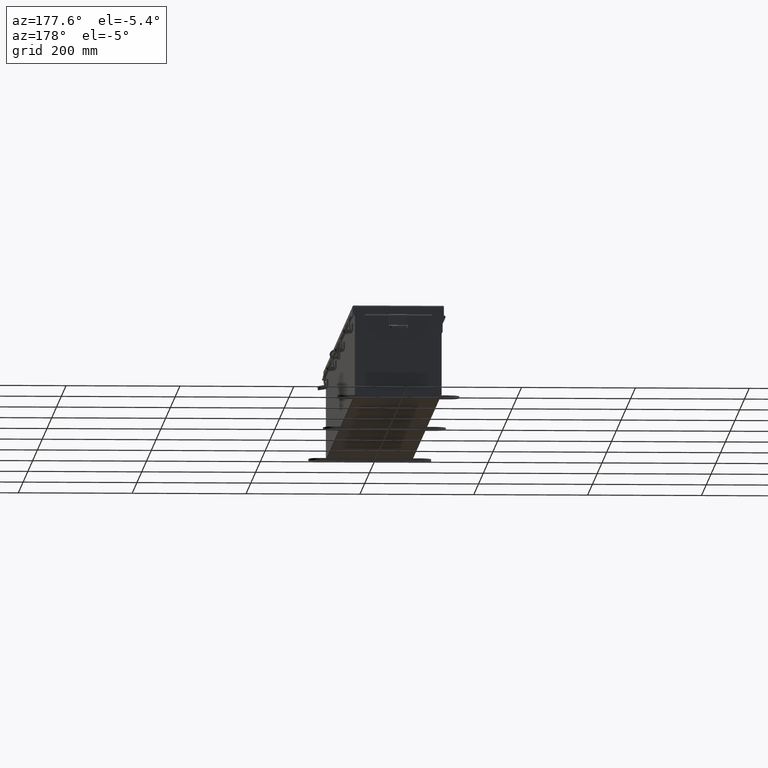
[diagram: clean part render]
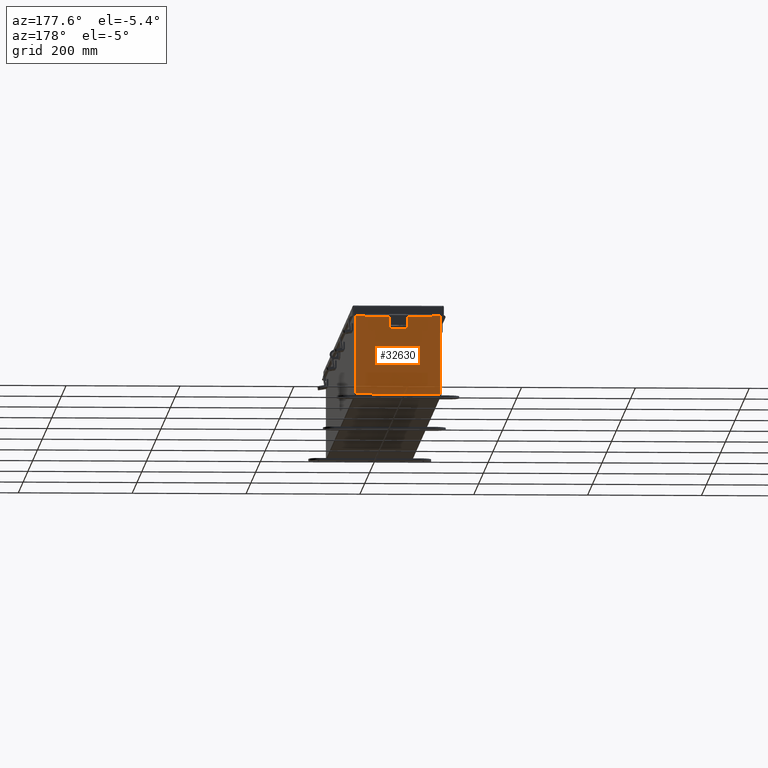
[diagram: same view with one face highlighted and labeled with its STEP entity id]
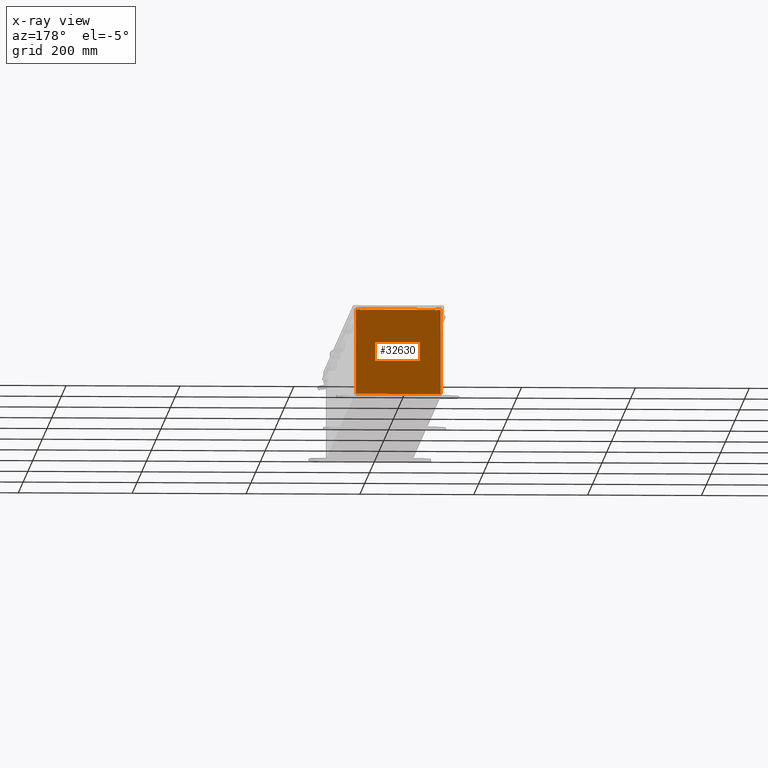
[diagram: x-ray of the same camera — body ghosted, the highlighted face saturated]
A machine part, auxiliary view. The second image highlights one B-rep face of the part: STEP entity #32630.
The next image is the same camera in x-ray: the body ghosted, the highlighted face saturated — about 0% of this face is hidden behind the body in this view.
In plain terms, the highlighted planar face has unit normal (0, -1, 0).
Its self-contained STEP definition (entity closure, byte-faithful):
#971 = VECTOR ( 'NONE', #12448, 39.37007874015748100 ) ;
#1104 = CARTESIAN_POINT ( 'NONE',  ( 0.0000000000000000000, 0.0000000000000000000, 0.0000000000000000000 ) ) ;
#1182 = VECTOR ( 'NONE', #19466, 39.37007874015748100 ) ;
#1683 = DIRECTION ( 'NONE',  ( -0.0000000000000000000, 1.000000000000000000, -0.0000000000000000000 ) ) ;
#1830 = VERTEX_POINT ( 'NONE', #13663 ) ;
#2603 = LINE ( 'NONE', #4765, #36898 ) ;
#3107 = CARTESIAN_POINT ( 'NONE',  ( -2.925299999999999600, 0.0000000000000000000, 2.925299999999999600 ) ) ;
#3224 = DIRECTION ( 'NONE',  ( 1.000000000000000000, 0.0000000000000000000, 0.0000000000000000000 ) ) ;
#3374 = ORIENTED_EDGE ( 'NONE', *, *, #30429, .T. ) ;
#3626 = LINE ( 'NONE', #29547, #17840 ) ;
#3937 = CARTESIAN_POINT ( 'NONE',  ( -2.582299999999999600, 0.0000000000000000000, 0.0000000000000000000 ) ) ;
#4387 = EDGE_LOOP ( 'NONE', ( #8232, #14737, #27650, #9432, #6762, #17682, #13247, #23038, #5798, #3374, #29632, #5017 ) ) ;
#4627 = VECTOR ( 'NONE', #15702, 39.37007874015748100 ) ;
#4676 = VERTEX_POINT ( 'NONE', #24451 ) ;
#4765 = CARTESIAN_POINT ( 'NONE',  ( -2.925299999999999600, 0.0000000000000000000, -2.925300000000000000 ) ) ;
#5017 = ORIENTED_EDGE ( 'NONE', *, *, #21602, .T. ) ;
#5153 = AXIS2_PLACEMENT_3D ( 'NONE', #9531, #29431, #12373 ) ;
#5535 = DIRECTION ( 'NONE',  ( 0.0000000000000000000, 0.0000000000000000000, 1.000000000000000000 ) ) ;
#5798 = ORIENTED_EDGE ( 'NONE', *, *, #28583, .T. ) ;
#6762 = ORIENTED_EDGE ( 'NONE', *, *, #16115, .F. ) ;
#6780 = DIRECTION ( 'NONE',  ( -0.0000000000000000000, -0.0000000000000000000, 1.000000000000000000 ) ) ;
#8232 = ORIENTED_EDGE ( 'NONE', *, *, #25543, .F. ) ;
#8736 = LINE ( 'NONE', #13587, #1182 ) ;
#9432 = ORIENTED_EDGE ( 'NONE', *, *, #14220, .T. ) ;
#9531 = CARTESIAN_POINT ( 'NONE',  ( -2.600974999999999600, 0.0000000000000000000, 2.874949999999998300 ) ) ;
#9666 = CARTESIAN_POINT ( 'NONE',  ( -2.619649999999999600, 0.0000000000000000000, 2.874949999999998300 ) ) ;
#9896 = VERTEX_POINT ( 'NONE', #29251 ) ;
#9927 = CIRCLE ( 'NONE', #29916, 0.01867500000000003900 ) ;
#10047 = CARTESIAN_POINT ( 'NONE',  ( 2.925300000000000500, 0.0000000000000000000, 2.925299999999999600 ) ) ;
#10503 = EDGE_CURVE ( 'NONE', #19156, #20650, #25506, .T. ) ;
#10515 = VERTEX_POINT ( 'NONE', #20748 ) ;
#10892 = VECTOR ( 'NONE', #5535, 39.37007874015748100 ) ;
#11138 = LINE ( 'NONE', #18131, #32972 ) ;
#11798 = VERTEX_POINT ( 'NONE', #26479 ) ;
#12291 = EDGE_CURVE ( 'NONE', #30597, #11798, #23665, .T. ) ;
#12363 = AXIS2_PLACEMENT_3D ( 'NONE', #1104, #35340, #18274 ) ;
#12373 = DIRECTION ( 'NONE',  ( 0.0000000000000000000, 0.0000000000000000000, -1.000000000000000000 ) ) ;
#12448 = DIRECTION ( 'NONE',  ( 0.0000000000000000000, 0.0000000000000000000, -1.000000000000000000 ) ) ;
#13022 = LINE ( 'NONE', #32910, #4627 ) ;
#13247 = ORIENTED_EDGE ( 'NONE', *, *, #10503, .F. ) ;
#13522 = CARTESIAN_POINT ( 'NONE',  ( 2.925300000000000500, 0.0000000000000000000, -2.925300000000000000 ) ) ;
#13587 = CARTESIAN_POINT ( 'NONE',  ( -2.582299999999999600, 0.0000000000000000000, 2.912299999999999200 ) ) ;
#13663 = CARTESIAN_POINT ( 'NONE',  ( 2.582300000000000500, 0.0000000000000000000, 2.874949999999998300 ) ) ;
#13938 = VERTEX_POINT ( 'NONE', #9666 ) ;
#14220 = EDGE_CURVE ( 'NONE', #30597, #20179, #8736, .T. ) ;
#14360 = VECTOR ( 'NONE', #19457, 39.37007874015748100 ) ;
#14737 = ORIENTED_EDGE ( 'NONE', *, *, #19885, .F. ) ;
#14864 = DIRECTION ( 'NONE',  ( -1.085143195099989400E-014, 0.0000000000000000000, -1.000000000000000000 ) ) ;
#15327 = VERTEX_POINT ( 'NONE', #10047 ) ;
#15424 = CARTESIAN_POINT ( 'NONE',  ( 2.619650000000000500, 0.0000000000000000000, 2.874949999999998300 ) ) ;
#15702 = DIRECTION ( 'NONE',  ( 1.000000000000000000, 0.0000000000000000000, 0.0000000000000000000 ) ) ;
#15945 = EDGE_CURVE ( 'NONE', #19156, #15327, #13022, .T. ) ;
#16115 = EDGE_CURVE ( 'NONE', #1830, #20179, #30400, .T. ) ;
#16145 = DIRECTION ( 'NONE',  ( -1.000000000000000000, -0.0000000000000000000, -0.0000000000000000000 ) ) ;
#16584 = CARTESIAN_POINT ( 'NONE',  ( 2.582300000000000500, 0.0000000000000000000, 0.0000000000000000000 ) ) ;
#17682 = ORIENTED_EDGE ( 'NONE', *, *, #20021, .F. ) ;
#17840 = VECTOR ( 'NONE', #32426, 39.37007874015748100 ) ;
#17946 = VECTOR ( 'NONE', #14864, 39.37007874015748100 ) ;
#18131 = CARTESIAN_POINT ( 'NONE',  ( -2.925299999999999600, 0.0000000000000000000, 2.925299999999999600 ) ) ;
#18274 = DIRECTION ( 'NONE',  ( 0.0000000000000000000, -0.0000000000000000000, -1.000000000000000000 ) ) ;
#18714 = CARTESIAN_POINT ( 'NONE',  ( 2.600975000000000500, 0.0000000000000000000, 2.874949999999998300 ) ) ;
#19156 = VERTEX_POINT ( 'NONE', #20280 ) ;
#19320 = CARTESIAN_POINT ( 'NONE',  ( 2.582300000000000500, 0.0000000000000000000, 2.912299999999999200 ) ) ;
#19457 = DIRECTION ( 'NONE',  ( 0.0000000000000000000, 0.0000000000000000000, 1.000000000000000000 ) ) ;
#19466 = DIRECTION ( 'NONE',  ( 1.000000000000000000, 0.0000000000000000000, 0.0000000000000000000 ) ) ;
#19657 = CARTESIAN_POINT ( 'NONE',  ( -2.582299999999999600, 0.0000000000000000000, 2.912299999999999200 ) ) ;
#19885 = EDGE_CURVE ( 'NONE', #11798, #13938, #28652, .T. ) ;
#20021 = EDGE_CURVE ( 'NONE', #20650, #1830, #9927, .T. ) ;
#20179 = VERTEX_POINT ( 'NONE', #19320 ) ;
#20280 = CARTESIAN_POINT ( 'NONE',  ( 2.619650000000000500, 0.0000000000000000000, 2.925299999999999600 ) ) ;
#20427 = FACE_OUTER_BOUND ( 'NONE', #4387, .T. ) ;
#20650 = VERTEX_POINT ( 'NONE', #15424 ) ;
#20748 = CARTESIAN_POINT ( 'NONE',  ( -2.619649999999999600, 0.0000000000000000000, 2.925299999999999600 ) ) ;
#21581 = DIRECTION ( 'NONE',  ( 0.0000000000000000000, 0.0000000000000000000, -1.000000000000000000 ) ) ;
#21602 = EDGE_CURVE ( 'NONE', #4676, #10515, #33485, .T. ) ;
#22562 = CARTESIAN_POINT ( 'NONE',  ( -2.619649999999999600, 0.0000000000000000000, 0.0000000000000000000 ) ) ;
#23038 = ORIENTED_EDGE ( 'NONE', *, *, #15945, .T. ) ;
#23665 = LINE ( 'NONE', #3937, #971 ) ;
#24451 = CARTESIAN_POINT ( 'NONE',  ( -2.925299999999999600, 0.0000000000000000000, 2.925299999999999600 ) ) ;
#25506 = LINE ( 'NONE', #32062, #17946 ) ;
#25543 = EDGE_CURVE ( 'NONE', #13938, #10515, #26053, .T. ) ;
#25905 = VECTOR ( 'NONE', #3224, 39.37007874015748100 ) ;
#26053 = LINE ( 'NONE', #22562, #10892 ) ;
#26479 = CARTESIAN_POINT ( 'NONE',  ( -2.582299999999999600, 0.0000000000000000000, 2.874949999999998300 ) ) ;
#27650 = ORIENTED_EDGE ( 'NONE', *, *, #12291, .F. ) ;
#28582 = EDGE_CURVE ( 'NONE', #9896, #4676, #11138, .T. ) ;
#28583 = EDGE_CURVE ( 'NONE', #15327, #32278, #3626, .T. ) ;
#28652 = CIRCLE ( 'NONE', #5153, 0.01867500000000003900 ) ;
#29251 = CARTESIAN_POINT ( 'NONE',  ( -2.925299999999999600, 0.0000000000000000000, -2.925300000000000000 ) ) ;
#29431 = DIRECTION ( 'NONE',  ( -0.0000000000000000000, 1.000000000000000000, -0.0000000000000000000 ) ) ;
#29547 = CARTESIAN_POINT ( 'NONE',  ( 2.925300000000000500, 0.0000000000000000000, 2.925299999999999600 ) ) ;
#29589 = PLANE ( 'NONE',  #12363 ) ;
#29632 = ORIENTED_EDGE ( 'NONE', *, *, #28582, .T. ) ;
#29916 = AXIS2_PLACEMENT_3D ( 'NONE', #18714, #1683, #21581 ) ;
#30400 = LINE ( 'NONE', #16584, #14360 ) ;
#30429 = EDGE_CURVE ( 'NONE', #32278, #9896, #2603, .T. ) ;
#30597 = VERTEX_POINT ( 'NONE', #19657 ) ;
#32062 = CARTESIAN_POINT ( 'NONE',  ( 2.619649999999969400, 0.0000000000000000000, -2.841121913410833900E-014 ) ) ;
#32278 = VERTEX_POINT ( 'NONE', #13522 ) ;
#32426 = DIRECTION ( 'NONE',  ( 0.0000000000000000000, 0.0000000000000000000, -1.000000000000000000 ) ) ;
#32630 = ADVANCED_FACE ( 'NONE', ( #20427 ), #29589, .F. ) ;
#32910 = CARTESIAN_POINT ( 'NONE',  ( -2.925299999999999600, 0.0000000000000000000, 2.925299999999999600 ) ) ;
#32972 = VECTOR ( 'NONE', #6780, 39.37007874015748100 ) ;
#33485 = LINE ( 'NONE', #3107, #25905 ) ;
#35340 = DIRECTION ( 'NONE',  ( 0.0000000000000000000, -1.000000000000000000, 0.0000000000000000000 ) ) ;
#36898 = VECTOR ( 'NONE', #16145, 39.37007874015748100 ) ;